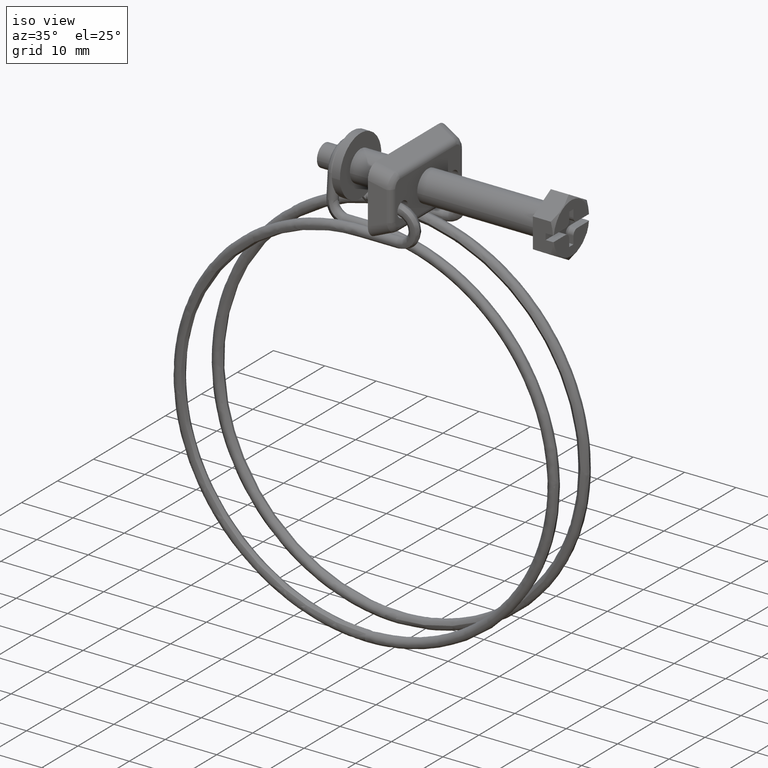
[diagram: clean part render]
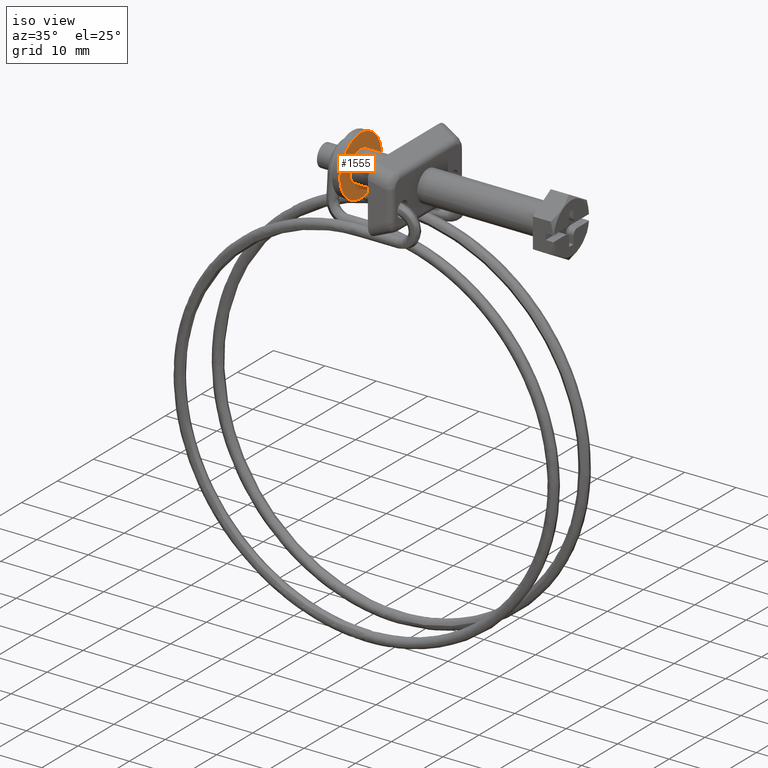
[diagram: same view with one face highlighted and labeled with its STEP entity id]
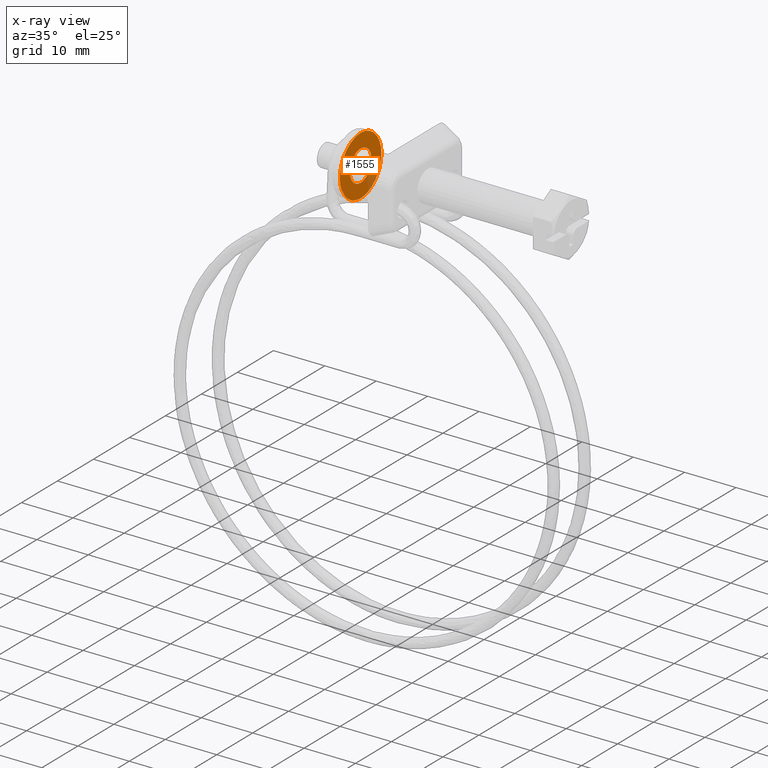
[diagram: x-ray of the same camera — body ghosted, the highlighted face saturated]
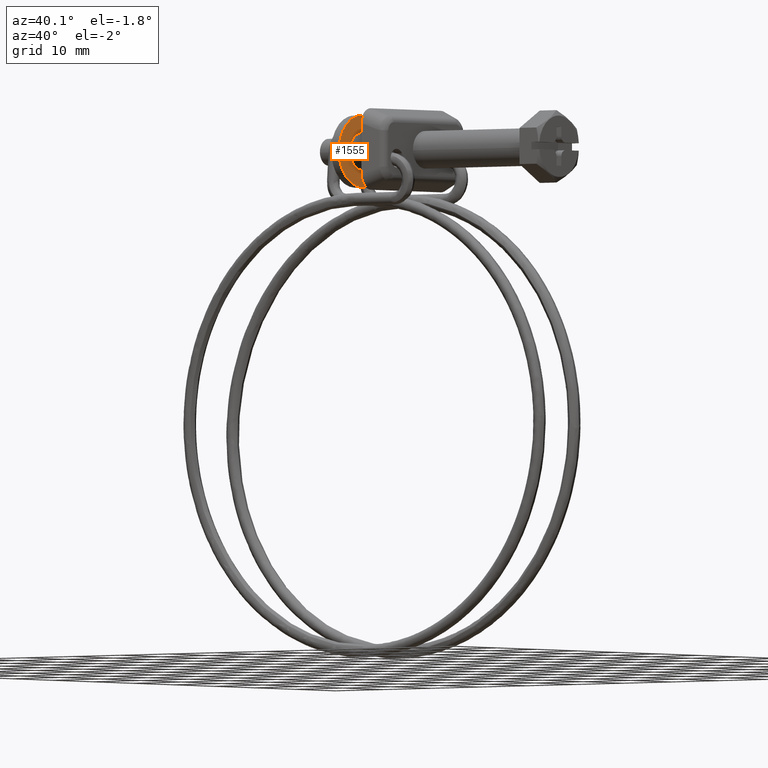
[diagram: same view with one face highlighted and labeled with its STEP entity id]
A machine part, iso view. The second image highlights one B-rep face of the part: STEP entity #1555.
The next image is the same camera in x-ray: the body ghosted, the highlighted face saturated — about 13% of this face is hidden behind the body in this view.
A second angle (auxiliary view) of the same face is appended — the face is thin or edge-on in the first view.
In plain terms, the highlighted face is a freeform B-spline surface patch.
Its self-contained STEP definition (entity closure, byte-faithful):
#100=CARTESIAN_POINT('',(-37.0,-2.994404395263937,-0.183145618633651));
#101=VERTEX_POINT('',#100);
#107=CARTESIAN_POINT('',(-37.0,0.0,-3.000000000000115));
#108=VERTEX_POINT('',#107);
#109=CARTESIAN_POINT('',(-37.0,0.0,-3.000000000000115));
#110=CARTESIAN_POINT('',(-37.0,-2.822118200662304,-3.000000000000114));
#111=CARTESIAN_POINT('',(-37.0,-2.994404395263937,-0.183145618633651));
#119=(BOUNDED_CURVE()B_SPLINE_CURVE(2,(#109,#110,#111),.UNSPECIFIED.,.F.,.U.)B_SPLINE_CURVE_WITH_KNOTS((3,3),(0.500000000000000,0.739332962238619),.UNSPECIFIED.)CURVE()GEOMETRIC_REPRESENTATION_ITEM()RATIONAL_B_SPLINE_CURVE((1.0,0.719603993287090,0.976072041666023))REPRESENTATION_ITEM(''));
#120=EDGE_CURVE('',#108,#101,#119,.T.);
#122=CARTESIAN_POINT('',(-37.0,2.979028579087759,0.354102703998512));
#123=VERTEX_POINT('',#122);
#124=CARTESIAN_POINT('',(-37.000000000000007,2.979028579087759,0.354102703998512));
#125=CARTESIAN_POINT('',(-37.0,3.000000000000116,0.177672358984258));
#126=CARTESIAN_POINT('',(-37.0,3.000000000000115,0.0));
#127=CARTESIAN_POINT('',(-37.000000000000007,3.000000000000114,-3.000000000000114));
#128=CARTESIAN_POINT('',(-37.0,0.0,-3.000000000000115));
#136=(BOUNDED_CURVE()B_SPLINE_CURVE(2,(#124,#125,#126,#127,#128),.UNSPECIFIED.,.F.,.U.)B_SPLINE_CURVE_WITH_KNOTS((3,2,3),(0.229562473512442,0.250000000000000,0.500000000000000),.UNSPECIFIED.)CURVE()GEOMETRIC_REPRESENTATION_ITEM()RATIONAL_B_SPLINE_CURVE((0.956026754181609,0.976055948329896,1.0,0.707106781186547,1.0))REPRESENTATION_ITEM(''));
#137=EDGE_CURVE('',#123,#108,#136,.T.);
#181=CARTESIAN_POINT('',(-37.0,0.0,3.000000000000115));
#182=VERTEX_POINT('',#181);
#183=CARTESIAN_POINT('',(-37.0,0.0,3.000000000000115));
#184=CARTESIAN_POINT('',(-37.000000000000007,2.664523577803362,3.000000000000115));
#185=CARTESIAN_POINT('',(-37.0,2.979028579087760,0.354102703998512));
#193=(BOUNDED_CURVE()B_SPLINE_CURVE(2,(#183,#184,#185),.UNSPECIFIED.,.F.,.U.)B_SPLINE_CURVE_WITH_KNOTS((3,3),(0.0,0.229562473512442),.UNSPECIFIED.)CURVE()GEOMETRIC_REPRESENTATION_ITEM()RATIONAL_B_SPLINE_CURVE((1.0,0.731050832856652,0.956026754181609))REPRESENTATION_ITEM(''));
#194=EDGE_CURVE('',#182,#123,#193,.T.);
#196=CARTESIAN_POINT('',(-37.0,-2.994404395263937,-0.183145618633651));
#197=CARTESIAN_POINT('',(-37.000000000000007,-3.000000000000115,-0.091658289924924));
#198=CARTESIAN_POINT('',(-37.0,-3.000000000000115,0.0));
#199=CARTESIAN_POINT('',(-37.000000000000007,-3.000000000000114,3.000000000000114));
#200=CARTESIAN_POINT('',(-37.0,0.0,3.000000000000115));
#208=(BOUNDED_CURVE()B_SPLINE_CURVE(2,(#196,#197,#198,#199,#200),.UNSPECIFIED.,.F.,.U.)B_SPLINE_CURVE_WITH_KNOTS((3,2,3),(0.739332962238618,0.750000000000000,1.0),.UNSPECIFIED.)CURVE()GEOMETRIC_REPRESENTATION_ITEM()RATIONAL_B_SPLINE_CURVE((0.976072041666021,0.987502787899456,1.0,0.707106781186547,1.0))REPRESENTATION_ITEM(''));
#209=EDGE_CURVE('',#101,#182,#208,.T.);
#252=CARTESIAN_POINT('',(-37.0,5.709804776586705,0.678696849313175));
#253=VERTEX_POINT('',#252);
#254=CARTESIAN_POINT('',(-37.0,0.0,-5.750000000000000));
#255=VERTEX_POINT('',#254);
#256=CARTESIAN_POINT('',(-37.0,5.709804776586705,0.678696849313175));
#257=CARTESIAN_POINT('',(-37.000000000000007,5.750000000000000,0.340538688035686));
#258=CARTESIAN_POINT('',(-37.0,5.750000000000000,0.0));
#259=CARTESIAN_POINT('',(-37.0,5.750000000000000,-5.750000000000000));
#260=CARTESIAN_POINT('',(-37.0,0.0,-5.750000000000000));
#268=(BOUNDED_CURVE()B_SPLINE_CURVE(2,(#256,#257,#258,#259,#260),.UNSPECIFIED.,.F.,.U.)B_SPLINE_CURVE_WITH_KNOTS((3,2,3),(0.229562473513465,0.250000000000000,0.500000000000000),.UNSPECIFIED.)CURVE()GEOMETRIC_REPRESENTATION_ITEM()RATIONAL_B_SPLINE_CURVE((0.956026754183614,0.976055948331094,1.0,0.707106781186548,1.0))REPRESENTATION_ITEM(''));
#269=EDGE_CURVE('',#253,#255,#268,.T.);
#271=CARTESIAN_POINT('',(-37.0,-5.739275090919949,-0.351029102420015));
#272=VERTEX_POINT('',#271);
#273=CARTESIAN_POINT('',(-37.0,0.0,-5.750000000000000));
#274=CARTESIAN_POINT('',(-37.000000000000007,-5.409059884529110,-5.749999999999999));
#275=CARTESIAN_POINT('',(-36.999999999999993,-5.739275090919949,-0.351029102420015));
#283=(BOUNDED_CURVE()B_SPLINE_CURVE(2,(#273,#274,#275),.UNSPECIFIED.,.F.,.U.)B_SPLINE_CURVE_WITH_KNOTS((3,3),(0.500000000000000,0.739332962236281),.UNSPECIFIED.)CURVE()GEOMETRIC_REPRESENTATION_ITEM()RATIONAL_B_SPLINE_CURVE((1.0,0.719603993289829,0.976072041661012))REPRESENTATION_ITEM(''));
#284=EDGE_CURVE('',#255,#272,#283,.T.);
#351=CARTESIAN_POINT('',(-37.0,0.0,5.750000000000000));
#352=VERTEX_POINT('',#351);
#353=CARTESIAN_POINT('',(-37.0,0.0,5.750000000000000));
#354=CARTESIAN_POINT('',(-36.999999999999993,5.107003524154044,5.750000000000001));
#355=CARTESIAN_POINT('',(-37.0,5.709804776586705,0.678696849313175));
#363=(BOUNDED_CURVE()B_SPLINE_CURVE(2,(#353,#354,#355),.UNSPECIFIED.,.F.,.U.)B_SPLINE_CURVE_WITH_KNOTS((3,3),(0.0,0.229562473513465),.UNSPECIFIED.)CURVE()GEOMETRIC_REPRESENTATION_ITEM()RATIONAL_B_SPLINE_CURVE((1.0,0.731050832855453,0.956026754183614))REPRESENTATION_ITEM(''));
#364=EDGE_CURVE('',#352,#253,#363,.T.);
#398=CARTESIAN_POINT('',(-37.0,-5.739275090919949,-0.351029102420015));
#399=CARTESIAN_POINT('',(-37.0,-5.750000000000000,-0.175678389061739));
#400=CARTESIAN_POINT('',(-37.0,-5.750000000000000,0.0));
#401=CARTESIAN_POINT('',(-37.0,-5.750000000000000,5.750000000000000));
#402=CARTESIAN_POINT('',(-37.0,0.0,5.750000000000000));
#410=(BOUNDED_CURVE()B_SPLINE_CURVE(2,(#398,#399,#400,#401,#402),.UNSPECIFIED.,.F.,.U.)B_SPLINE_CURVE_WITH_KNOTS((3,2,3),(0.739332962236281,0.750000000000000,1.0),.UNSPECIFIED.)CURVE()GEOMETRIC_REPRESENTATION_ITEM()RATIONAL_B_SPLINE_CURVE((0.976072041661012,0.987502787896719,1.0,0.707106781186548,1.0))REPRESENTATION_ITEM(''));
#411=EDGE_CURVE('',#272,#352,#410,.T.);
#1538=CARTESIAN_POINT('',(-37.0,-6.324285135775347,6.324424977710769));
#1539=CARTESIAN_POINT('',(-37.0,-6.324285135775347,-6.324425286164805));
#1540=CARTESIAN_POINT('',(-37.0,6.324320402353544,6.324424977710769));
#1541=CARTESIAN_POINT('',(-37.0,6.324320402353544,-6.324425286164805));
#1542=B_SPLINE_SURFACE_WITH_KNOTS('',1,1,((#1538,#1540),(#1539,#1541)),.UNSPECIFIED.,.F.,.F.,.U.,(2,2),(2,2),(0.0,12.648850263875570),(0.0,12.648605538128891),.UNSPECIFIED.);
#1543=ORIENTED_EDGE('',*,*,#411,.F.);
#1544=ORIENTED_EDGE('',*,*,#284,.F.);
#1545=ORIENTED_EDGE('',*,*,#269,.F.);
#1546=ORIENTED_EDGE('',*,*,#364,.F.);
#1547=EDGE_LOOP('',(#1543,#1544,#1545,#1546));
#1548=FACE_OUTER_BOUND('',#1547,.T.);
#1549=ORIENTED_EDGE('',*,*,#120,.T.);
#1550=ORIENTED_EDGE('',*,*,#209,.T.);
#1551=ORIENTED_EDGE('',*,*,#194,.T.);
#1552=ORIENTED_EDGE('',*,*,#137,.T.);
#1553=EDGE_LOOP('',(#1549,#1550,#1551,#1552));
#1554=FACE_BOUND('',#1553,.T.);
#1555=ADVANCED_FACE('',(#1548,#1554),#1542,.T.);